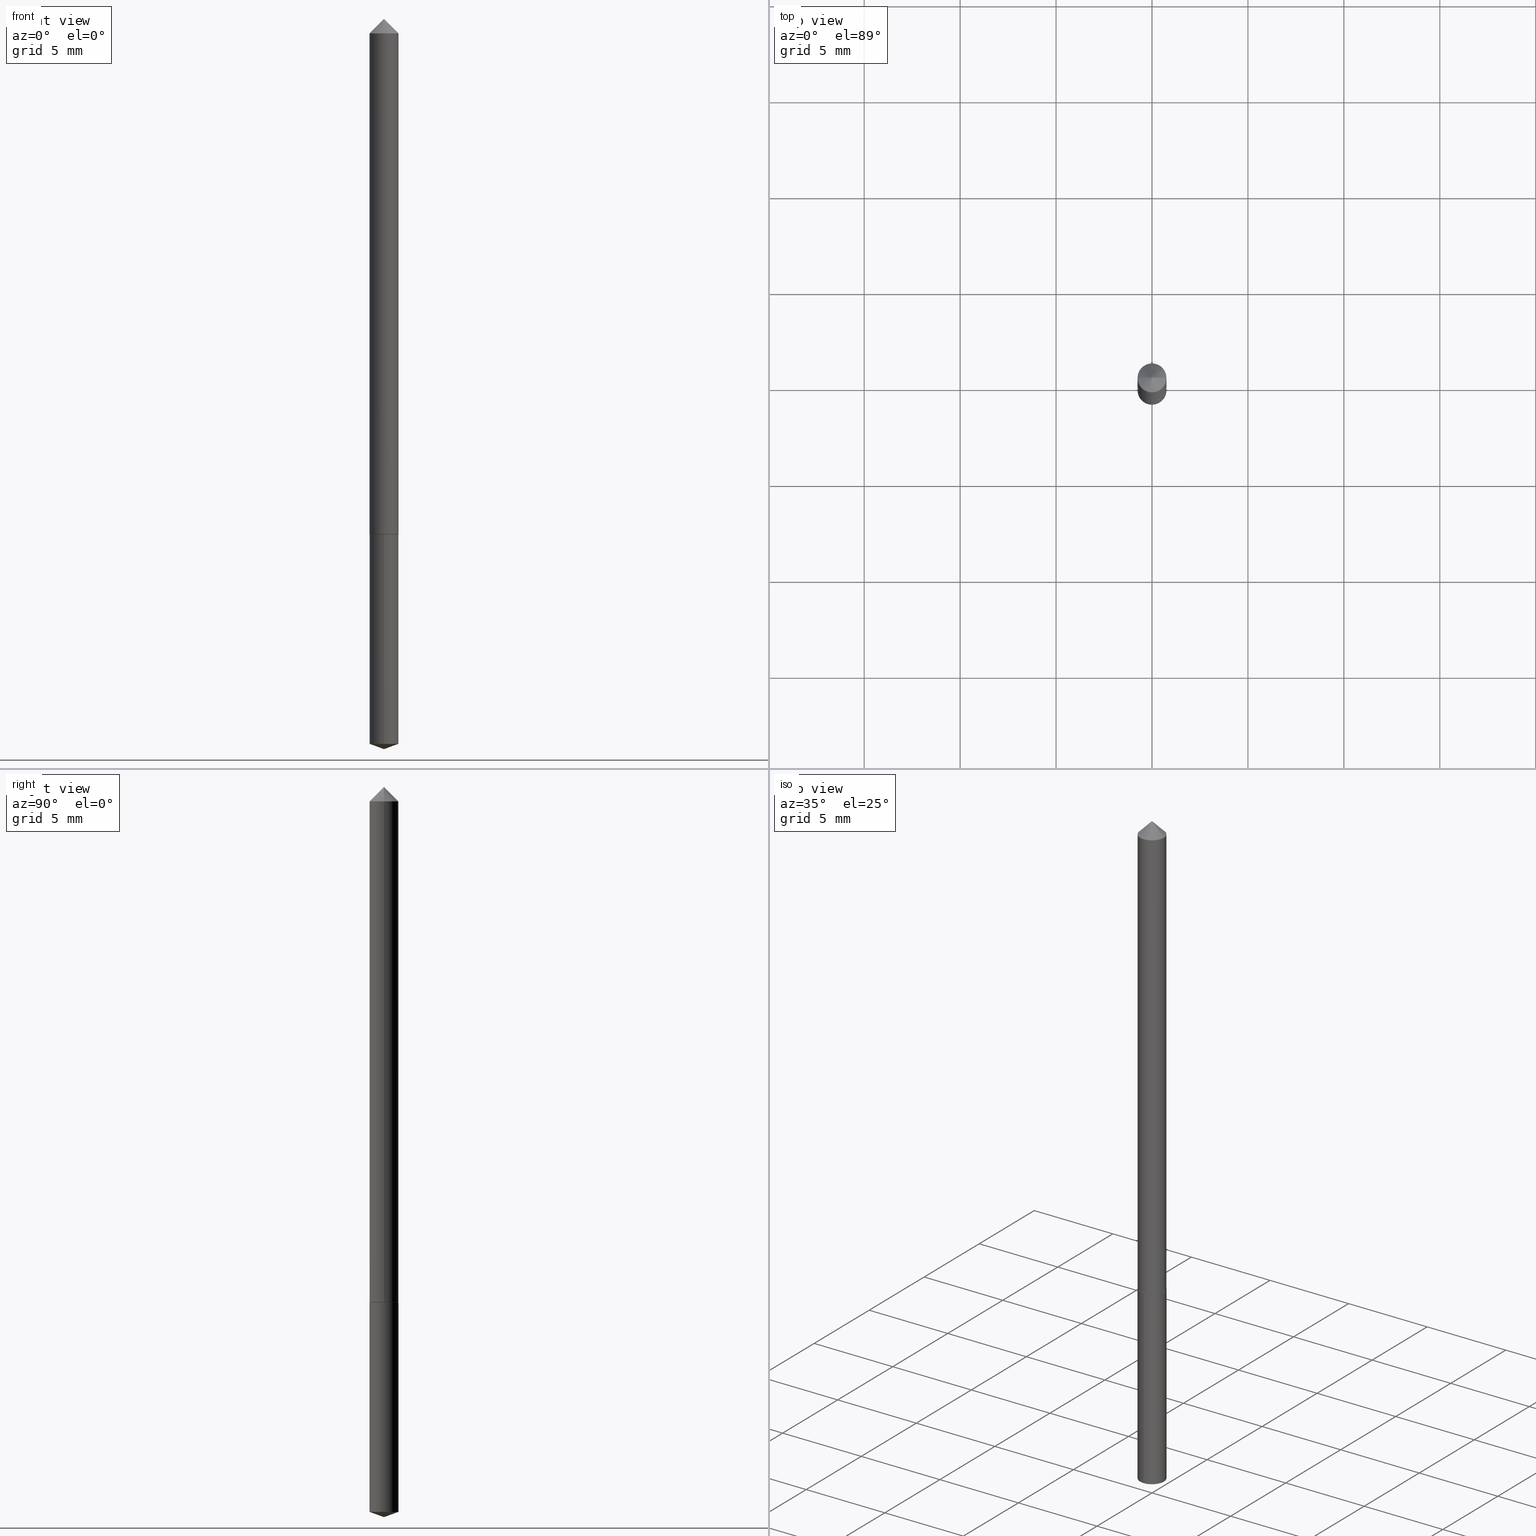
[diagram: canonical four-view strip — front | top / right | iso, engineering-drawing reading convention]
A machine part, canonical four-view strip (front | top / right | iso — engineering-drawing reading convention). The complete STEP part file that produces these views, byte-faithful:
ISO-10303-21;
HEADER;
FILE_DESCRIPTION (( 'STEP AP203' ),
    '1' );
FILE_NAME ('56053.STEP',
    '2024-04-22T20:06:18',
    ( '' ),
    ( '' ),
    'SwSTEP 2.0',
    'SolidWorks 2023',
    '' );
FILE_SCHEMA (( 'CONFIG_CONTROL_DESIGN' ));
ENDSEC;

DATA;
#1 = CALENDAR_DATE ( 2024, 22, 4 ) ;
#2 = LINE ( 'NONE', #290, #35 ) ;
#3 = CIRCLE ( 'NONE', #303, 0.02925000000000017170 ) ;
#4 = CC_DESIGN_SECURITY_CLASSIFICATION ( #219, ( #277 ) ) ;
#5 = PERSON_AND_ORGANIZATION_ROLE ( 'creator' ) ;
#6 = DIRECTION ( 'NONE',  ( 1.000000000000000000, -6.982962677686266711E-15, 4.876176775795935232E-29 ) ) ;
#7 = ORIENTED_EDGE ( 'NONE', *, *, #211, .F. ) ;
#8 = FACE_OUTER_BOUND ( 'NONE', #192, .T. ) ;
#9 = ORIENTED_EDGE ( 'NONE', *, *, #133, .F. ) ;
#10 = CARTESIAN_POINT ( 'NONE',  ( 0.02975000000000000214, -3.132086072725520932E-16, -0.03125000000000020817 ) ) ;
#11 = VERTEX_POINT ( 'NONE', #355 ) ;
#12 = CYLINDRICAL_SURFACE ( 'NONE', #227, 0.02975000000000006459 ) ;
#13 = ORIENTED_EDGE ( 'NONE', *, *, #88, .F. ) ;
#14 = CC_DESIGN_PERSON_AND_ORGANIZATION_ASSIGNMENT ( #335, #170, ( #253 ) ) ;
#15 = EDGE_LOOP ( 'NONE', ( #43, #125, #7 ) ) ;
#16 = DIRECTION ( 'NONE',  ( 1.000000000000000000, -6.982962677686266711E-15, 0.000000000000000000 ) ) ;
#17 = AXIS2_PLACEMENT_3D ( 'NONE', #328, #114, #333 ) ;
#18 = AXIS2_PLACEMENT_3D ( 'NONE', #81, #30, #231 ) ;
#19 = CC_DESIGN_DATE_AND_TIME_ASSIGNMENT ( #209, #109, ( #253 ) ) ;
#20 = DIRECTION ( 'NONE',  ( -2.445459552101217247E-29, 3.491494591218027885E-15, 1.000000000000000000 ) ) ;
#21 = FACE_OUTER_BOUND ( 'NONE', #151, .T. ) ;
#22 = AXIS2_PLACEMENT_3D ( 'NONE', #215, #122, #187 ) ;
#23 = PRODUCT_RELATED_PRODUCT_CATEGORY ( 'detail', '', ( #107 ) ) ;
#24 = VECTOR ( 'NONE', #53, 39.37007874015748854 ) ;
#25 = DIRECTION ( 'NONE',  ( -6.982962677686265922E-15, -1.000000000000000000, 4.591341165822291216E-15 ) ) ;
#26 = CONICAL_SURFACE ( 'NONE', #156, 0.02975000000000000214, 0.7853981633974450594 ) ;
#27 = CARTESIAN_POINT ( 'NONE',  ( 0.02975000000000012704, -3.905221877496058889E-15, -1.059000000000000163 ) ) ;
#28 = COORDINATED_UNIVERSAL_TIME_OFFSET ( 5, 0, .BEHIND. ) ;
#29 = APPLICATION_CONTEXT ( 'configuration controlled 3d designs of mechanical parts and assemblies' ) ;
#30 = DIRECTION ( 'NONE',  ( -2.445459552101217247E-29, 3.491494591218027885E-15, 1.000000000000000000 ) ) ;
#31 = APPLICATION_PROTOCOL_DEFINITION ( 'international standard', 'config_control_design', 1994, #29 ) ;
#32 = CARTESIAN_POINT ( 'NONE',  ( 3.668189328151826290E-29, -5.237241886827041630E-15, -1.500000000000000222 ) ) ;
#33 = LINE ( 'NONE', #27, #141 ) ;
#34 = DIRECTION ( 'NONE',  ( 0.000000000000000000, 0.000000000000000000, 1.000000000000000000 ) ) ;
#35 = VECTOR ( 'NONE', #307, 39.37007874015748143 ) ;
#36 = APPLICATION_PROTOCOL_DEFINITION ( 'international standard', 'config_control_design', 1994, #237 ) ;
#37 = ORIENTED_EDGE ( 'NONE', *, *, #224, .F. ) ;
#38 =( CONVERSION_BASED_UNIT ( 'INCH', #152 ) LENGTH_UNIT ( ) NAMED_UNIT ( #79 ) );
#39 = ORIENTED_EDGE ( 'NONE', *, *, #363, .F. ) ;
#40 = DIRECTION ( 'NONE',  ( -2.445468806185136597E-29, 3.491481338843145583E-15, 1.000000000000000000 ) ) ;
#41 = VERTEX_POINT ( 'NONE', #71 ) ;
#42 = ADVANCED_FACE ( 'NONE', ( #254 ), #252, .T. ) ;
#43 = ORIENTED_EDGE ( 'NONE', *, *, #175, .F. ) ;
#44 = DIRECTION ( 'NONE',  ( -2.445459552101217247E-29, 3.491494591218027885E-15, 1.000000000000000000 ) ) ;
#45 = FACE_OUTER_BOUND ( 'NONE', #294, .T. ) ;
#46 = LOCAL_TIME ( 16, 6, 18.00000000000000000, #258 ) ;
#47 = DIRECTION ( 'NONE',  ( -1.000000000000000000, 6.982962677686267499E-15, 0.000000000000000000 ) ) ;
#48 = CIRCLE ( 'NONE', #22, 0.02975000000000012704 ) ;
#49 = PERSON_AND_ORGANIZATION ( #197, #76 ) ;
#50 = CARTESIAN_POINT ( 'NONE',  ( 2.590974200153151946E-29, -3.699224478504312001E-15, -1.059499999999999886 ) ) ;
#51 = DATE_AND_TIME ( #55, #165 ) ;
#52 = ADVANCED_FACE ( 'NONE', ( #45 ), #105, .T. ) ;
#53 = DIRECTION ( 'NONE',  ( -6.561838499445221362E-15, -0.9396926207859103153, 0.3420201433256630508 ) ) ;
#54 = CARTESIAN_POINT ( 'NONE',  ( -2.077431396611299340E-16, -0.02975000000000519590, -1.489171885530580886 ) ) ;
#55 = CALENDAR_DATE ( 2024, 22, 4 ) ;
#56 = CARTESIAN_POINT ( 'NONE',  ( 2.589751465750059705E-29, -3.697478737834891287E-15, -1.059000000000000163 ) ) ;
#57 = PERSON_AND_ORGANIZATION ( #197, #76 ) ;
#58 = CARTESIAN_POINT ( 'NONE',  ( 0.02975000000000000214, -3.168519315000154702E-16, -0.03125000000000020817 ) ) ;
#59 = ORIENTED_EDGE ( 'NONE', *, *, #161, .F. ) ;
#60 = CC_DESIGN_APPROVAL ( #72, ( #253 ) ) ;
#61 = EDGE_LOOP ( 'NONE', ( #59, #123, #347, #146 ) ) ;
#62 = EDGE_CURVE ( 'NONE', #41, #185, #74, .T. ) ;
#63 = FACE_OUTER_BOUND ( 'NONE', #153, .T. ) ;
#64 = ORIENTED_EDGE ( 'NONE', *, *, #246, .T. ) ;
#65 = ORIENTED_EDGE ( 'NONE', *, *, #175, .T. ) ;
#66 = CIRCLE ( 'NONE', #212, 0.02975000000000000214 ) ;
#67 = ORIENTED_EDGE ( 'NONE', *, *, #62, .F. ) ;
#68 = DESIGN_CONTEXT ( 'detailed design', #29, 'design' ) ;
#69 = CARTESIAN_POINT ( 'NONE',  ( 2.113864638886661574E-16, 0.02974999999999479450, -1.489171885530580886 ) ) ;
#70 = CIRCLE ( 'NONE', #264, 0.02974999999999999867 ) ;
#71 = CARTESIAN_POINT ( 'NONE',  ( -0.02925000000000017170, -3.488741501120371114E-15, -1.059499999999999886 ) ) ;
#72 = APPROVAL ( #201, 'UNSPECIFIED' ) ;
#73 = DIRECTION ( 'NONE',  ( 1.000000000000000000, -6.982962677686261977E-15, 0.000000000000000000 ) ) ;
#74 = CIRCLE ( 'NONE', #126, 0.02925000000000017170 ) ;
#75 = DIRECTION ( 'NONE',  ( -2.445468806185136597E-29, 3.491481338843145583E-15, 1.000000000000000000 ) ) ;
#76 = ORGANIZATION ( 'UNSPECIFIED', 'UNSPECIFIED', '' ) ;
#77 = DIRECTION ( 'NONE',  ( 6.982962677686265922E-15, 1.000000000000000000, -3.491494591218027885E-15 ) ) ;
#78 = ADVANCED_FACE ( 'NONE', ( #21 ), #313, .T. ) ;
#79 = DIMENSIONAL_EXPONENTS ( 1.000000000000000000, 0.000000000000000000, 0.000000000000000000, 0.000000000000000000, 0.000000000000000000, 0.000000000000000000, 0.000000000000000000 ) ;
#80 = AXIS2_PLACEMENT_3D ( 'NONE', #174, #85, #135 ) ;
#81 = CARTESIAN_POINT ( 'NONE',  ( 2.590974200153152507E-29, -3.699224478504313579E-15, -1.059500000000000108 ) ) ;
#82 = CALENDAR_DATE ( 2024, 22, 4 ) ;
#83 = CARTESIAN_POINT ( 'NONE',  ( -2.077431396611405097E-16, -0.02975000000000370057, -1.059499999999999886 ) ) ;
#84 = APPROVAL_DATE_TIME ( #283, #343 ) ;
#85 = DIRECTION ( 'NONE',  ( -2.445459552101217247E-29, 3.491494591218027885E-15, 1.000000000000000000 ) ) ;
#86 = COORDINATED_UNIVERSAL_TIME_OFFSET ( 5, 0, .BEHIND. ) ;
#87 = DIRECTION ( 'NONE',  ( -6.982962677686265922E-15, -1.000000000000000000, 4.591341165822291216E-15 ) ) ;
#88 = EDGE_CURVE ( 'NONE', #11, #96, #356, .T. ) ;
#89 = UNCERTAINTY_MEASURE_WITH_UNIT (LENGTH_MEASURE( 1.000000000000000082E-05 ), #38, 'distance_accuracy_value', 'NONE');
#90 = APPROVAL_ROLE ( '' ) ;
#91 = CARTESIAN_POINT ( 'NONE',  ( 7.642090019328602662E-31, -1.091087918388490267E-16, -0.03125000000000020817 ) ) ;
#92 = CIRCLE ( 'NONE', #164, 0.02974999999999999867 ) ;
#93 = ORIENTED_EDGE ( 'NONE', *, *, #161, .T. ) ;
#94 = DIRECTION ( 'NONE',  ( -2.445459552101217247E-29, 3.491494591218027885E-15, 1.000000000000000000 ) ) ;
#95 = APPROVAL_PERSON_ORGANIZATION ( #262, #72, #232 ) ;
#96 = VERTEX_POINT ( 'NONE', #101 ) ;
#97 = CC_DESIGN_PERSON_AND_ORGANIZATION_ASSIGNMENT ( #49, #206, ( #219 ) ) ;
#98 = EDGE_LOOP ( 'NONE', ( #162, #351 ) ) ;
#99 = ORIENTED_EDGE ( 'NONE', *, *, #88, .T. ) ;
#100 = ORIENTED_EDGE ( 'NONE', *, *, #357, .T. ) ;
#101 = CARTESIAN_POINT ( 'NONE',  ( -0.02975000000000012704, -3.486092273946260702E-15, -1.059000000000000163 ) ) ;
#102 = CARTESIAN_POINT ( 'NONE',  ( -9.260973598924142692E-28, 1.322231891311518653E-13, 37.87007874015748143 ) ) ;
#103 = EDGE_CURVE ( 'NONE', #342, #245, #275, .T. ) ;
#104 = DIRECTION ( 'NONE',  ( -6.982962677686266711E-15, -1.000000000000000000, 3.475157955500627523E-15 ) ) ;
#105 = CONICAL_SURFACE ( 'NONE', #291, 108.1684023407363497, 1.221730476396040155 ) ;
#106 = CARTESIAN_POINT ( 'NONE',  ( 2.590974200153152507E-29, -3.699224478504313579E-15, -1.059500000000000108 ) ) ;
#107 = PRODUCT ( '56053', '56053', '', ( #144 ) ) ;
#108 = CIRCLE ( 'NONE', #130, 0.02975000000000000214 ) ;
#109 = DATE_TIME_ROLE ( 'creation_date' ) ;
#110 = FACE_OUTER_BOUND ( 'NONE', #98, .T. ) ;
#111 = CC_DESIGN_APPROVAL ( #343, ( #277 ) ) ;
#112 = APPROVAL_DATE_TIME ( #51, #116 ) ;
#113 = FACE_OUTER_BOUND ( 'NONE', #15, .T. ) ;
#114 = DIRECTION ( 'NONE',  ( -2.438088387897960049E-29, 3.491481338843145188E-15, 1.000000000000000000 ) ) ;
#115 = CALENDAR_DATE ( 2024, 22, 4 ) ;
#116 = APPROVAL ( #177, 'UNSPECIFIED' ) ;
#117 = DIRECTION ( 'NONE',  ( -2.445459552101217247E-29, 3.491494591218027885E-15, 1.000000000000000000 ) ) ;
#118 = APPROVAL_PERSON_ORGANIZATION ( #136, #343, #90 ) ;
#119 = PERSON_AND_ORGANIZATION ( #197, #76 ) ;
#120 = FACE_OUTER_BOUND ( 'NONE', #270, .T. ) ;
#121 = ORIENTED_EDGE ( 'NONE', *, *, #240, .F. ) ;
#122 = DIRECTION ( 'NONE',  ( -2.445468806185136597E-29, 3.491481338843145583E-15, 1.000000000000000000 ) ) ;
#123 = ORIENTED_EDGE ( 'NONE', *, *, #62, .T. ) ;
#124 = VERTEX_POINT ( 'NONE', #69 ) ;
#125 = ORIENTED_EDGE ( 'NONE', *, *, #280, .T. ) ;
#126 = AXIS2_PLACEMENT_3D ( 'NONE', #131, #75, #16 ) ;
#127 = EDGE_LOOP ( 'NONE', ( #271, #67 ) ) ;
#128 = CARTESIAN_POINT ( 'NONE',  ( -0.02975000000000000214, 9.863434782231742915E-17, -0.03125000000000020817 ) ) ;
#129 = AXIS2_PLACEMENT_3D ( 'NONE', #56, #176, #358 ) ;
#130 = AXIS2_PLACEMENT_3D ( 'NONE', #261, #203, #308 ) ;
#131 = CARTESIAN_POINT ( 'NONE',  ( 2.590974200153151946E-29, -3.699224478504312001E-15, -1.059499999999999886 ) ) ;
#132 = DIRECTION ( 'NONE',  ( -2.445459552101217247E-29, 3.491494591218027885E-15, 1.000000000000000000 ) ) ;
#133 = EDGE_CURVE ( 'NONE', #124, #248, #186, .T. ) ;
#134 = PLANE ( 'NONE',  #17 ) ;
#135 = DIRECTION ( 'NONE',  ( -6.982962677686266711E-15, -1.000000000000000000, 3.475157955500627523E-15 ) ) ;
#136 = PERSON_AND_ORGANIZATION ( #197, #76 ) ;
#137 = LINE ( 'NONE', #236, #349 ) ;
#138 = PERSON_AND_ORGANIZATION_ROLE ( 'design_owner' ) ;
#139 = CARTESIAN_POINT ( 'NONE',  ( -0.02975000000000000214, -1.691907300948238426E-15, -0.03125000000000020817 ) ) ;
#140 = ADVANCED_FACE ( 'NONE', ( #354 ), #26, .T. ) ;
#141 = VECTOR ( 'NONE', #287, 39.37007874015748143 ) ;
#142 = DATE_TIME_ROLE ( 'classification_date' ) ;
#143 = CARTESIAN_POINT ( 'NONE',  ( 0.02925000000000017170, -3.903476136826636597E-15, -1.059499999999999886 ) ) ;
#144 = MECHANICAL_CONTEXT ( 'NONE', #237, 'mechanical' ) ;
#145 = APPROVAL_PERSON_ORGANIZATION ( #57, #116, #230 ) ;
#146 = ORIENTED_EDGE ( 'NONE', *, *, #326, .F. ) ;
#147 = LINE ( 'NONE', #344, #330 ) ;
#148 = ORIENTED_EDGE ( 'NONE', *, *, #103, .F. ) ;
#149 = CLOSED_SHELL ( 'NONE', ( #140, #323, #78, #229, #276, #329, #257 ) ) ;
#150 = DIRECTION ( 'NONE',  ( -2.445459552101217247E-29, 3.491494591218027885E-15, 1.000000000000000000 ) ) ;
#151 = EDGE_LOOP ( 'NONE', ( #216, #93, #13, #317 ) ) ;
#152 = LENGTH_MEASURE_WITH_UNIT ( LENGTH_MEASURE( 0.02539999999999999897 ), #318 );
#153 = EDGE_LOOP ( 'NONE', ( #99, #214, #39, #298 ) ) ;
#154 = ORIENTED_EDGE ( 'NONE', *, *, #211, .T. ) ;
#155 = EDGE_CURVE ( 'NONE', #185, #11, #33, .T. ) ;
#156 = AXIS2_PLACEMENT_3D ( 'NONE', #223, #325, #255 ) ;
#157 = AXIS2_PLACEMENT_3D ( 'NONE', #301, #158, #73 ) ;
#158 = DIRECTION ( 'NONE',  ( -2.445468806185136597E-29, 3.491481338843145583E-15, 1.000000000000000000 ) ) ;
#159 = DIRECTION ( 'NONE',  ( -6.982962677686265922E-15, -1.000000000000000000, 0.000000000000000000 ) ) ;
#160 = CONICAL_SURFACE ( 'NONE', #129, 0.02975000000000012704, 0.7853981633976403476 ) ;
#161 = EDGE_CURVE ( 'NONE', #41, #96, #137, .T. ) ;
#162 = ORIENTED_EDGE ( 'NONE', *, *, #224, .T. ) ;
#163 = DIRECTION ( 'NONE',  ( -2.445468806185136597E-29, 3.491481338843145583E-15, 1.000000000000000000 ) ) ;
#164 = AXIS2_PLACEMENT_3D ( 'NONE', #205, #117, #198 ) ;
#165 = LOCAL_TIME ( 16, 6, 18.00000000000000000, #28 ) ;
#166 = PLANE ( 'NONE',  #315 ) ;
#167 = EDGE_CURVE ( 'NONE', #243, #322, #70, .T. ) ;
#168 = APPROVAL_DATE_TIME ( #260, #72 ) ;
#169 = DIRECTION ( 'NONE',  ( -2.445468806185136597E-29, 3.491481338843145583E-15, 1.000000000000000000 ) ) ;
#170 = PERSON_AND_ORGANIZATION_ROLE ( 'creator' ) ;
#171 = CONICAL_SURFACE ( 'NONE', #80, 108.1684023407363497, 1.221730476396040155 ) ;
#172 = LINE ( 'NONE', #285, #191 ) ;
#173 = COORDINATED_UNIVERSAL_TIME_OFFSET ( 5, 0, .BEHIND. ) ;
#174 = CARTESIAN_POINT ( 'NONE',  ( -9.260973598924142692E-28, 1.322231891311518653E-13, 37.87007874015748143 ) ) ;
#175 = EDGE_CURVE ( 'NONE', #273, #248, #337, .T. ) ;
#176 = DIRECTION ( 'NONE',  ( -2.445468806185136597E-29, 3.491481338843145583E-15, 1.000000000000000000 ) ) ;
#177 = APPROVAL_STATUS ( 'not_yet_approved' ) ;
#178 =( NAMED_UNIT ( * ) SI_UNIT ( $, .STERADIAN. ) SOLID_ANGLE_UNIT ( ) );
#179 = ADVANCED_FACE ( 'NONE', ( #113 ), #171, .T. ) ;
#180 = CIRCLE ( 'NONE', #18, 0.02974999999999999867 ) ;
#181 = CARTESIAN_POINT ( 'NONE',  ( 0.000000000000000000, 0.000000000000000000, 0.000000000000000000 ) ) ;
#182 = ORIENTED_EDGE ( 'NONE', *, *, #240, .T. ) ;
#183 =( GEOMETRIC_REPRESENTATION_CONTEXT ( 3 ) GLOBAL_UNCERTAINTY_ASSIGNED_CONTEXT ( ( #89 ) ) GLOBAL_UNIT_ASSIGNED_CONTEXT ( ( #38, #272, #178 ) ) REPRESENTATION_CONTEXT ( 'NONE', 'WORKASPACE' ) );
#184 = CARTESIAN_POINT ( 'NONE',  ( -2.077431396611405097E-16, -0.02975000000000370057, -1.059499999999999886 ) ) ;
#185 = VERTEX_POINT ( 'NONE', #143 ) ;
#186 = CIRCLE ( 'NONE', #194, 0.02974999999999999867 ) ;
#187 = DIRECTION ( 'NONE',  ( 1.000000000000000000, -6.982962677686261977E-15, 0.000000000000000000 ) ) ;
#188 = EDGE_LOOP ( 'NONE', ( #345, #189, #182, #314 ) ) ;
#189 = ORIENTED_EDGE ( 'NONE', *, *, #133, .T. ) ;
#190 = CC_DESIGN_DATE_AND_TIME_ASSIGNMENT ( #309, #142, ( #219 ) ) ;
#191 = VECTOR ( 'NONE', #304, 39.37007874015748143 ) ;
#192 = EDGE_LOOP ( 'NONE', ( #320, #300, #296, #220 ) ) ;
#193 = PRODUCT_DEFINITION_SHAPE ( 'NONE', 'NONE',  #253 ) ;
#194 = AXIS2_PLACEMENT_3D ( 'NONE', #195, #44, #159 ) ;
#195 = CARTESIAN_POINT ( 'NONE',  ( 3.641719416893252327E-29, -5.199421542832787783E-15, -1.489171885530580886 ) ) ;
#196 = CC_DESIGN_PERSON_AND_ORGANIZATION_ASSIGNMENT ( #234, #138, ( #107 ) ) ;
#197 = PERSON ( 'UNSPECIFIED', 'UNSPECIFIED', 'UNSPECIFIED', ('UNSPECIFIED'), ('UNSPECIFIED'), ('UNSPECIFIED') ) ;
#198 = DIRECTION ( 'NONE',  ( -6.982962677686265922E-15, -1.000000000000000000, 0.000000000000000000 ) ) ;
#199 = LOCAL_TIME ( 16, 6, 18.00000000000000000, #173 ) ;
#200 = CARTESIAN_POINT ( 'NONE',  ( -0.02975000000000006459, 2.113864638886302642E-16, -1.463383189350837589E-30 ) ) ;
#201 = APPROVAL_STATUS ( 'not_yet_approved' ) ;
#202 = DIRECTION ( 'NONE',  ( 1.000000000000000000, -6.982962677686266711E-15, 0.000000000000000000 ) ) ;
#203 = DIRECTION ( 'NONE',  ( -2.445468806185136597E-29, 3.491481338843145583E-15, 1.000000000000000000 ) ) ;
#204 = SECURITY_CLASSIFICATION_LEVEL ( 'unclassified' ) ;
#205 = CARTESIAN_POINT ( 'NONE',  ( 3.641719416893252327E-29, -5.199421542832787783E-15, -1.489171885530580886 ) ) ;
#206 = PERSON_AND_ORGANIZATION_ROLE ( 'classification_officer' ) ;
#207 = AXIS2_PLACEMENT_3D ( 'NONE', #324, #163, #281 ) ;
#208 = ADVANCED_BREP_SHAPE_REPRESENTATION ( '56053', ( #221, #332, #299 ), #183 ) ;
#209 = DATE_AND_TIME ( #1, #199 ) ;
#210 = ORIENTED_EDGE ( 'NONE', *, *, #280, .F. ) ;
#211 = EDGE_CURVE ( 'NONE', #248, #124, #92, .T. ) ;
#212 = AXIS2_PLACEMENT_3D ( 'NONE', #91, #346, #213 ) ;
#213 = DIRECTION ( 'NONE',  ( 1.000000000000000000, -6.982962677686267499E-15, 0.000000000000000000 ) ) ;
#214 = ORIENTED_EDGE ( 'NONE', *, *, #302, .T. ) ;
#215 = CARTESIAN_POINT ( 'NONE',  ( 2.589751465750059705E-29, -3.697478737834891287E-15, -1.059000000000000163 ) ) ;
#216 = ORIENTED_EDGE ( 'NONE', *, *, #311, .T. ) ;
#217 = EDGE_CURVE ( 'NONE', #11, #348, #172, .T. ) ;
#218 = ORIENTED_EDGE ( 'NONE', *, *, #363, .T. ) ;
#219 = SECURITY_CLASSIFICATION ( '', '', #204 ) ;
#220 = ORIENTED_EDGE ( 'NONE', *, *, #246, .F. ) ;
#221 = MANIFOLD_SOLID_BREP ( 'Body-Move/Copy2[1]', #225 ) ;
#222 = CC_DESIGN_PERSON_AND_ORGANIZATION_ASSIGNMENT ( #265, #238, ( #277 ) ) ;
#223 = CARTESIAN_POINT ( 'NONE',  ( 7.642090019328602662E-31, -1.091087918388490267E-16, -0.03125000000000020817 ) ) ;
#224 = EDGE_CURVE ( 'NONE', #322, #243, #180, .T. ) ;
#225 = CLOSED_SHELL ( 'NONE', ( #350, #179, #52, #42, #292 ) ) ;
#226 = DIRECTION ( 'NONE',  ( 2.445459552101216966E-29, -3.491494591218027885E-15, -1.000000000000000000 ) ) ;
#227 = AXIS2_PLACEMENT_3D ( 'NONE', #244, #295, #297 ) ;
#228 = DIRECTION ( 'NONE',  ( 2.445468806185136597E-29, -3.491481338843145583E-15, -1.000000000000000000 ) ) ;
#229 = ADVANCED_FACE ( 'NONE', ( #310 ), #134, .F. ) ;
#230 = APPROVAL_ROLE ( '' ) ;
#231 = DIRECTION ( 'NONE',  ( -6.982962677686265922E-15, -1.000000000000000000, 4.591341165822291216E-15 ) ) ;
#232 = APPROVAL_ROLE ( '' ) ;
#233 = DIRECTION ( 'NONE',  ( -2.445459552101217247E-29, 3.491494591218027885E-15, 1.000000000000000000 ) ) ;
#234 = PERSON_AND_ORGANIZATION ( #197, #76 ) ;
#235 = VECTOR ( 'NONE', #233, 39.37007874015748143 ) ;
#236 = CARTESIAN_POINT ( 'NONE',  ( -0.02975000000000012704, -3.486092273946260702E-15, -1.059000000000000163 ) ) ;
#237 = APPLICATION_CONTEXT ( 'configuration controlled 3d designs of mechanical parts and assemblies' ) ;
#238 = PERSON_AND_ORGANIZATION_ROLE ( 'design_supplier' ) ;
#239 = CYLINDRICAL_SURFACE ( 'NONE', #352, 0.02974999999999999867 ) ;
#240 = EDGE_CURVE ( 'NONE', #248, #322, #263, .T. ) ;
#241 = ORIENTED_EDGE ( 'NONE', *, *, #336, .F. ) ;
#242 = LINE ( 'NONE', #10, #249 ) ;
#243 = VERTEX_POINT ( 'NONE', #256 ) ;
#244 = CARTESIAN_POINT ( 'NONE',  ( 0.000000000000000000, 0.000000000000000000, 0.000000000000000000 ) ) ;
#245 = VERTEX_POINT ( 'NONE', #139 ) ;
#246 = EDGE_CURVE ( 'NONE', #245, #348, #108, .T. ) ;
#247 = EDGE_LOOP ( 'NONE', ( #241, #268, #64 ) ) ;
#248 = VERTEX_POINT ( 'NONE', #54 ) ;
#249 = VECTOR ( 'NONE', #267, 39.37007874015748143 ) ;
#250 = DIRECTION ( 'NONE',  ( -6.982962677686265922E-15, -1.000000000000000000, 4.591341165822291216E-15 ) ) ;
#251 = AXIS2_PLACEMENT_3D ( 'NONE', #181, #40, #6 ) ;
#252 = CYLINDRICAL_SURFACE ( 'NONE', #279, 0.02974999999999999867 ) ;
#253 = PRODUCT_DEFINITION ( 'UNKNOWN', '', #277, #68 ) ;
#254 = FACE_OUTER_BOUND ( 'NONE', #188, .T. ) ;
#255 = DIRECTION ( 'NONE',  ( -1.000000000000000000, 6.982962677686267499E-15, 0.000000000000000000 ) ) ;
#256 = CARTESIAN_POINT ( 'NONE',  ( 2.113864638886662806E-16, 0.02974999999999630024, -1.059500000000000330 ) ) ;
#257 = ADVANCED_FACE ( 'NONE', ( #289 ), #316, .T. ) ;
#258 = COORDINATED_UNIVERSAL_TIME_OFFSET ( 5, 0, .BEHIND. ) ;
#259 = CARTESIAN_POINT ( 'NONE',  ( 2.590974200153152507E-29, -3.699224478504313579E-15, -1.059500000000000108 ) ) ;
#260 = DATE_AND_TIME ( #82, #46 ) ;
#261 = CARTESIAN_POINT ( 'NONE',  ( 7.642090019328602662E-31, -1.091087918388490267E-16, -0.03125000000000020817 ) ) ;
#262 = PERSON_AND_ORGANIZATION ( #197, #76 ) ;
#263 = LINE ( 'NONE', #83, #235 ) ;
#264 = AXIS2_PLACEMENT_3D ( 'NONE', #259, #362, #25 ) ;
#265 = PERSON_AND_ORGANIZATION ( #197, #76 ) ;
#266 = CC_DESIGN_APPROVAL ( #116, ( #219 ) ) ;
#267 = DIRECTION ( 'NONE',  ( 0.7071067811865452413, -7.319954787623248157E-15, -0.7071067811865497932 ) ) ;
#268 = ORIENTED_EDGE ( 'NONE', *, *, #103, .T. ) ;
#269 = CYLINDRICAL_SURFACE ( 'NONE', #251, 0.02975000000000006459 ) ;
#270 = EDGE_LOOP ( 'NONE', ( #154, #100, #37, #121 ) ) ;
#271 = ORIENTED_EDGE ( 'NONE', *, *, #311, .F. ) ;
#272 =( NAMED_UNIT ( * ) PLANE_ANGLE_UNIT ( ) SI_UNIT ( $, .RADIAN. ) );
#273 = VERTEX_POINT ( 'NONE', #32 ) ;
#274 = ORIENTED_EDGE ( 'NONE', *, *, #336, .T. ) ;
#275 = LINE ( 'NONE', #128, #334 ) ;
#276 = ADVANCED_FACE ( 'NONE', ( #364 ), #160, .T. ) ;
#277 = PRODUCT_DEFINITION_FORMATION_WITH_SPECIFIED_SOURCE ( 'ANY', '', #107, .NOT_KNOWN. ) ;
#278 = CARTESIAN_POINT ( 'NONE',  ( 2.590974200153152507E-29, -3.699224478504313579E-15, -1.059500000000000108 ) ) ;
#279 = AXIS2_PLACEMENT_3D ( 'NONE', #278, #132, #250 ) ;
#280 = EDGE_CURVE ( 'NONE', #273, #124, #2, .T. ) ;
#281 = DIRECTION ( 'NONE',  ( 1.000000000000000000, -6.982962677686261977E-15, 0.000000000000000000 ) ) ;
#282 = DIRECTION ( 'NONE',  ( -0.7071067811866833530, 7.493145998870846409E-15, 0.7071067811864117925 ) ) ;
#283 = DATE_AND_TIME ( #115, #338 ) ;
#284 = CC_DESIGN_PERSON_AND_ORGANIZATION_ASSIGNMENT ( #119, #5, ( #277 ) ) ;
#285 = CARTESIAN_POINT ( 'NONE',  ( 0.02975000000000006459, -2.077431396611668872E-16, 1.450662590799293904E-30 ) ) ;
#286 = SHAPE_DEFINITION_REPRESENTATION ( #193, #208 ) ;
#287 = DIRECTION ( 'NONE',  ( 0.7071067811866833530, -2.468850131083679377E-15, 0.7071067811864117925 ) ) ;
#288 = APPROVAL_STATUS ( 'not_yet_approved' ) ;
#289 = FACE_OUTER_BOUND ( 'NONE', #247, .T. ) ;
#290 = CARTESIAN_POINT ( 'NONE',  ( 3.668209109506975425E-29, -5.237213805044666746E-15, -1.500000000000000222 ) ) ;
#291 = AXIS2_PLACEMENT_3D ( 'NONE', #102, #20, #104 ) ;
#292 = ADVANCED_FACE ( 'NONE', ( #110 ), #166, .F. ) ;
#293 = CARTESIAN_POINT ( 'NONE',  ( 3.621629985203349909E-32, -5.303917515922585637E-18, -0.001500000000000013909 ) ) ;
#294 = EDGE_LOOP ( 'NONE', ( #210, #65, #9 ) ) ;
#295 = DIRECTION ( 'NONE',  ( -2.445468806185136597E-29, 3.491481338843145583E-15, 1.000000000000000000 ) ) ;
#296 = ORIENTED_EDGE ( 'NONE', *, *, #217, .T. ) ;
#297 = DIRECTION ( 'NONE',  ( 1.000000000000000000, -6.982962677686266711E-15, 4.876176775795935232E-29 ) ) ;
#298 = ORIENTED_EDGE ( 'NONE', *, *, #217, .F. ) ;
#299 = AXIS2_PLACEMENT_3D ( 'NONE', #339, #34, #361 ) ;
#300 = ORIENTED_EDGE ( 'NONE', *, *, #326, .T. ) ;
#301 = CARTESIAN_POINT ( 'NONE',  ( 2.589751465750059705E-29, -3.697478737834891287E-15, -1.059000000000000163 ) ) ;
#302 = EDGE_CURVE ( 'NONE', #96, #245, #331, .T. ) ;
#303 = AXIS2_PLACEMENT_3D ( 'NONE', #50, #169, #202 ) ;
#304 = DIRECTION ( 'NONE',  ( -2.445468806185136877E-29, 3.491481338843145188E-15, 1.000000000000000000 ) ) ;
#305 = DIRECTION ( 'NONE',  ( -2.445468806185136877E-29, 3.491481338843145188E-15, 1.000000000000000000 ) ) ;
#306 = COORDINATED_UNIVERSAL_TIME_OFFSET ( 5, 0, .BEHIND. ) ;
#307 = DIRECTION ( 'NONE',  ( 6.676917655467991006E-15, 0.9396926207859128688, 0.3420201433256565560 ) ) ;
#308 = DIRECTION ( 'NONE',  ( 1.000000000000000000, -6.982962677686267499E-15, 0.000000000000000000 ) ) ;
#309 = DATE_AND_TIME ( #312, #321 ) ;
#310 = FACE_OUTER_BOUND ( 'NONE', #127, .T. ) ;
#311 = EDGE_CURVE ( 'NONE', #185, #41, #3, .T. ) ;
#312 = CALENDAR_DATE ( 2024, 22, 4 ) ;
#313 = CONICAL_SURFACE ( 'NONE', #157, 0.02975000000000012704, 0.7853981633976403476 ) ;
#314 = ORIENTED_EDGE ( 'NONE', *, *, #167, .F. ) ;
#315 = AXIS2_PLACEMENT_3D ( 'NONE', #106, #226, #77 ) ;
#316 = CONICAL_SURFACE ( 'NONE', #359, 0.02975000000000000214, 0.7853981633974450594 ) ;
#317 = ORIENTED_EDGE ( 'NONE', *, *, #155, .F. ) ;
#318 =( LENGTH_UNIT ( ) NAMED_UNIT ( * ) SI_UNIT ( $, .METRE. ) );
#319 = EDGE_LOOP ( 'NONE', ( #148, #274, #218 ) ) ;
#320 = ORIENTED_EDGE ( 'NONE', *, *, #302, .F. ) ;
#321 = LOCAL_TIME ( 16, 6, 18.00000000000000000, #306 ) ;
#322 = VERTEX_POINT ( 'NONE', #184 ) ;
#323 = ADVANCED_FACE ( 'NONE', ( #63 ), #269, .T. ) ;
#324 = CARTESIAN_POINT ( 'NONE',  ( 2.589751465750059705E-29, -3.697478737834891287E-15, -1.059000000000000163 ) ) ;
#325 = DIRECTION ( 'NONE',  ( 2.445468806185136597E-29, -3.491481338843145583E-15, -1.000000000000000000 ) ) ;
#326 = EDGE_CURVE ( 'NONE', #96, #11, #48, .T. ) ;
#327 = VECTOR ( 'NONE', #305, 39.37007874015748143 ) ;
#328 = CARTESIAN_POINT ( 'NONE',  ( 6.045920856466198322E-29, 1.248455776687611070E-15, -1.059499999999999886 ) ) ;
#329 = ADVANCED_FACE ( 'NONE', ( #8 ), #12, .T. ) ;
#330 = VECTOR ( 'NONE', #94, 39.37007874015748143 ) ;
#331 = LINE ( 'NONE', #200, #327 ) ;
#332 = MANIFOLD_SOLID_BREP ( 'Body-Move/Copy2[2]', #149 ) ;
#333 = DIRECTION ( 'NONE',  ( 1.000000000000000000, -6.982962677686265922E-15, 4.876176775795935793E-29 ) ) ;
#334 = VECTOR ( 'NONE', #353, 39.37007874015748143 ) ;
#335 = PERSON_AND_ORGANIZATION ( #197, #76 ) ;
#336 = EDGE_CURVE ( 'NONE', #342, #348, #242, .T. ) ;
#337 = LINE ( 'NONE', #340, #24 ) ;
#338 = LOCAL_TIME ( 16, 6, 18.00000000000000000, #86 ) ;
#339 = CARTESIAN_POINT ( 'NONE',  ( 0.000000000000000000, 0.000000000000000000, 0.000000000000000000 ) ) ;
#340 = CARTESIAN_POINT ( 'NONE',  ( 3.668189328151826290E-29, -5.237241886827041630E-15, -1.500000000000000222 ) ) ;
#341 = CARTESIAN_POINT ( 'NONE',  ( 2.590974200153152507E-29, -3.699224478504313579E-15, -1.059500000000000108 ) ) ;
#342 = VERTEX_POINT ( 'NONE', #293 ) ;
#343 = APPROVAL ( #288, 'UNSPECIFIED' ) ;
#344 = CARTESIAN_POINT ( 'NONE',  ( 2.113864638886556803E-16, 0.02974999999999630024, -1.059500000000000330 ) ) ;
#345 = ORIENTED_EDGE ( 'NONE', *, *, #357, .F. ) ;
#346 = DIRECTION ( 'NONE',  ( -2.445468806185136597E-29, 3.491481338843145583E-15, 1.000000000000000000 ) ) ;
#347 = ORIENTED_EDGE ( 'NONE', *, *, #155, .T. ) ;
#348 = VERTEX_POINT ( 'NONE', #58 ) ;
#349 = VECTOR ( 'NONE', #282, 39.37007874015748143 ) ;
#350 = ADVANCED_FACE ( 'NONE', ( #120 ), #239, .T. ) ;
#351 = ORIENTED_EDGE ( 'NONE', *, *, #167, .T. ) ;
#352 = AXIS2_PLACEMENT_3D ( 'NONE', #341, #150, #87 ) ;
#353 = DIRECTION ( 'NONE',  ( -0.7071067811865452413, 2.468850131082233000E-15, -0.7071067811865497932 ) ) ;
#354 = FACE_OUTER_BOUND ( 'NONE', #319, .T. ) ;
#355 = CARTESIAN_POINT ( 'NONE',  ( 0.02975000000000012704, -3.905221877496058889E-15, -1.059000000000000163 ) ) ;
#356 = CIRCLE ( 'NONE', #207, 0.02975000000000012704 ) ;
#357 = EDGE_CURVE ( 'NONE', #124, #243, #147, .T. ) ;
#358 = DIRECTION ( 'NONE',  ( 1.000000000000000000, -6.982962677686261977E-15, 0.000000000000000000 ) ) ;
#359 = AXIS2_PLACEMENT_3D ( 'NONE', #360, #228, #47 ) ;
#360 = CARTESIAN_POINT ( 'NONE',  ( 7.642090019328602662E-31, -1.091087918388490267E-16, -0.03125000000000020817 ) ) ;
#361 = DIRECTION ( 'NONE',  ( 1.000000000000000000, 0.000000000000000000, 0.000000000000000000 ) ) ;
#362 = DIRECTION ( 'NONE',  ( -2.445459552101217247E-29, 3.491494591218027885E-15, 1.000000000000000000 ) ) ;
#363 = EDGE_CURVE ( 'NONE', #348, #245, #66, .T. ) ;
#364 = FACE_OUTER_BOUND ( 'NONE', #61, .T. ) ;
ENDSEC;
END-ISO-10303-21;
